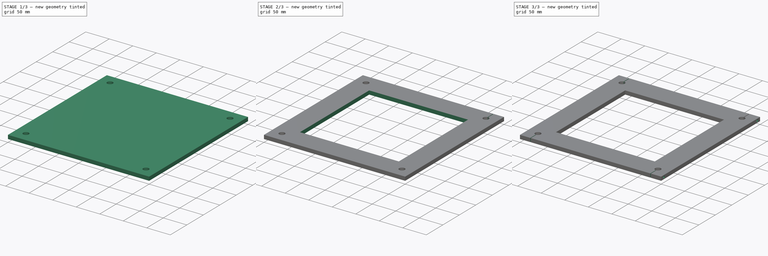
[diagram: build sequence overview — one tinted view per stage of 3, left to right]
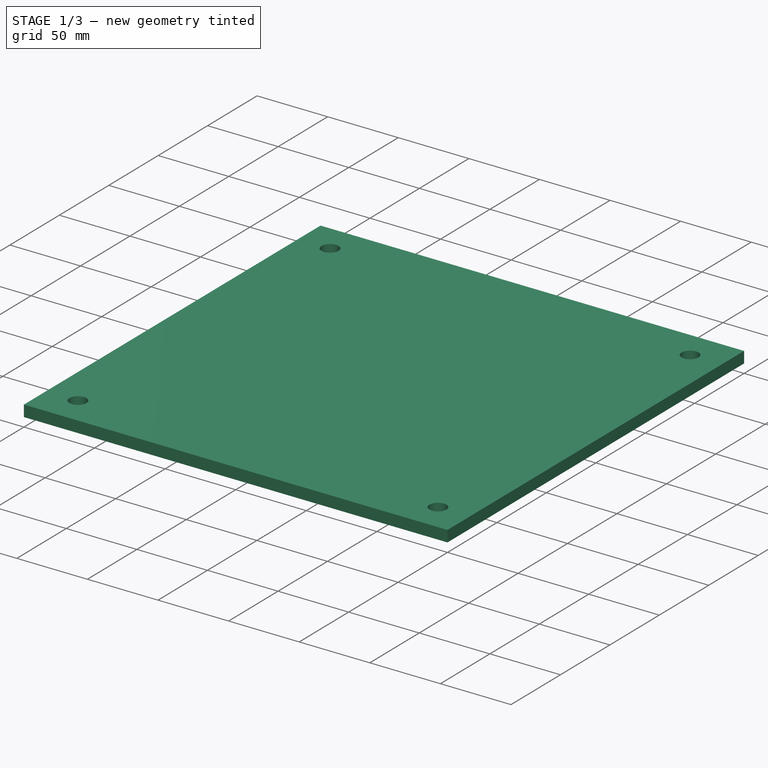
[diagram: stage 1 of 3 — iso view after this stage's code; geometry added in this stage tinted green]
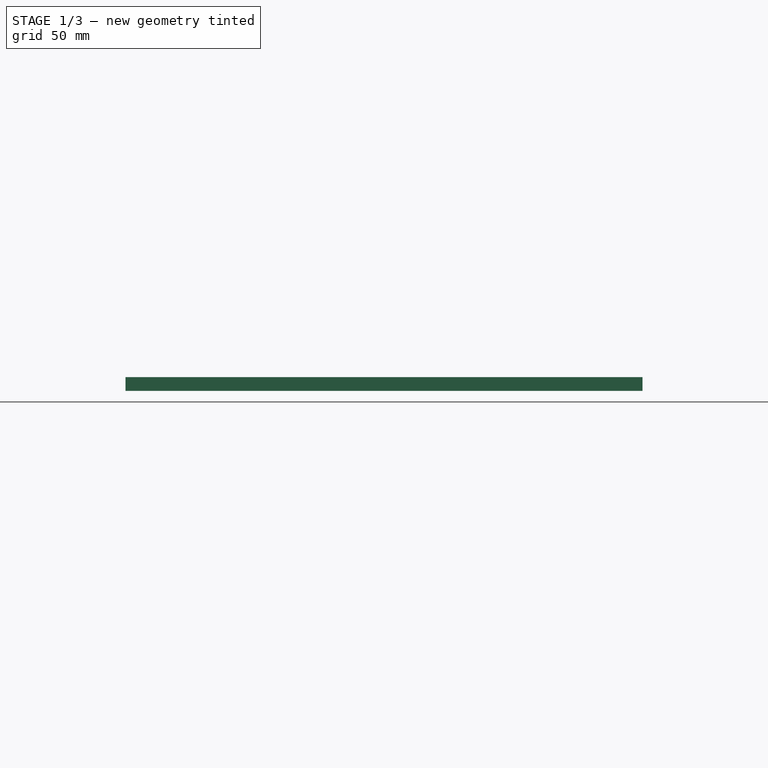
[diagram: stage 1 of 3 — front view after this stage's code; geometry added in this stage tinted green]
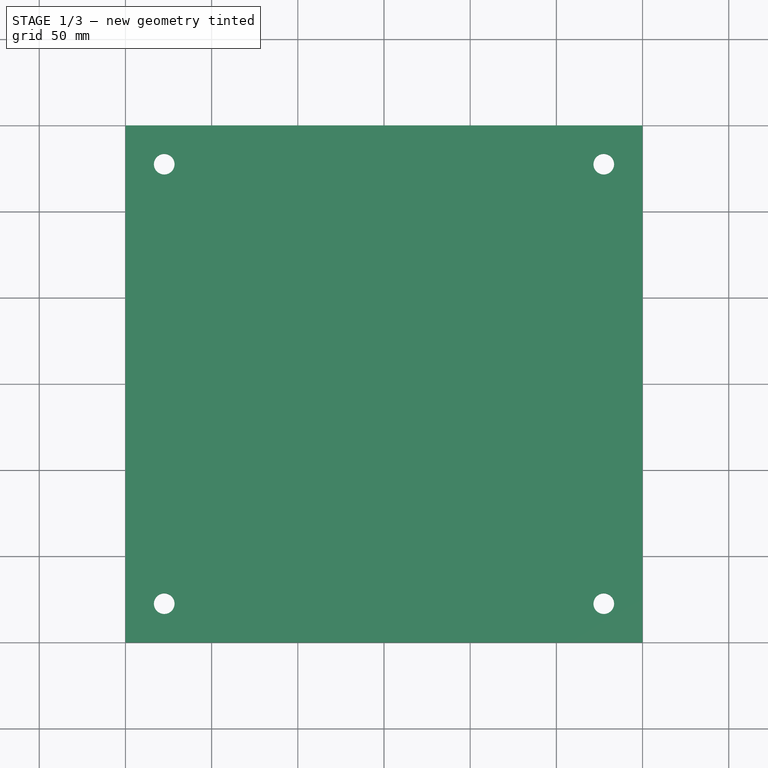
[diagram: stage 1 of 3 — top view after this stage's code; geometry added in this stage tinted green]
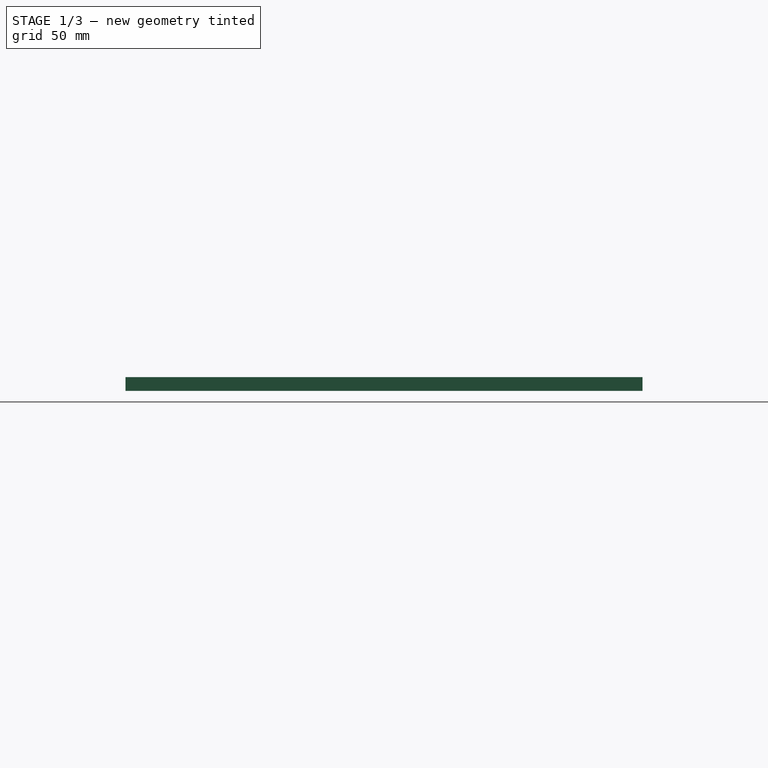
[diagram: stage 1 of 3 — right view after this stage's code; geometry added in this stage tinted green]
FCSTD DOCUMENT  (FreeCAD 0.15R4671 (Git))
Label: plateBottom
License: All rights reserved
LicenseURL: http://en.wikipedia.org/wiki/All_rights_reserved
objects: Sketcher::SketchObject×5, PartDesign::Mirrored×5, PartDesign::Pocket×4, PartDesign::MultiTransform×3, PartDesign::Pad×1
note: 23 computed .brp shape members not serialized (recipe doc carries the construction recipe); baked Part::Feature solids carry a one-line shape summary decoded from their .brp

FEATURE [Sketcher::SketchObject] Sketch
  sketch-geometry (6):
    g0: LineSegment StartX=-150 StartY=-150 StartZ=0 EndX=150 EndY=-150 EndZ=0
    g1: LineSegment StartX=150 StartY=-150 StartZ=0 EndX=150 EndY=150 EndZ=0
    g2: LineSegment StartX=150 StartY=150 StartZ=0 EndX=-150 EndY=150 EndZ=0
    g3: LineSegment StartX=-150 StartY=150 StartZ=0 EndX=-150 EndY=-150 EndZ=0
    g4: LineSegment [constr] StartX=-150 StartY=150 StartZ=0 EndX=150 EndY=-150 EndZ=0
    g5: LineSegment [constr] StartX=-150 StartY=-150 StartZ=0 EndX=150 EndY=150 EndZ=0
  constraints (16):
    c: Coincident(g0,g1)
    c: Coincident(g1,g2)
    c: Coincident(g2,g3)
    c: Coincident(g3,g0)
    c: Horizontal(g0)
    c: Horizontal(g2)
    c: Vertical(g1)
    c: Vertical(g3)
    c: DistanceX(g2) = -300
    c: Coincident(g4,g2)
    c: Coincident(g4,g0)
    c: PointOnObject(g-1,g4)
    c: Coincident(g5,g0)
    c: Coincident(g5,g1)
    c: PointOnObject(g-1,g5)
    c: Equal(g1,g2)
FEATURE [PartDesign::Pad] Pad
  Length = 8
  Length2 = 100
  Sketch = -> Sketch
  Type = 0
FEATURE [Sketcher::SketchObject] Sketch001
  Placement = pos=(0,0,8) rot=(0,0,1;0rad)
  Support = -> Pad [Face6]
  sketch-geometry (1):
    g0: Circle CenterX=127.5 CenterY=127.5 CenterZ=0 NormalX=0 NormalY=0 NormalZ=1 Radius=6
  constraints (3):
    c: Radius(g0) = 6
    c: DistanceX(g0) = 127.5
    c: DistanceY(g0) = 127.5
FEATURE [PartDesign::Pocket] Pocket
  Length = 5
  Sketch = -> Sketch001
  Type = 1
FEATURE [PartDesign::Mirrored] Mirrored
  MirrorPlane = -> Sketch001 [V_Axis]
FEATURE [PartDesign::Mirrored] Mirrored001
  MirrorPlane = -> Sketch001 [H_Axis]
FEATURE [PartDesign::MultiTransform] MultiTransform
  Originals = -> [Pocket]
  Transformations = -> [Mirrored,Mirrored001]
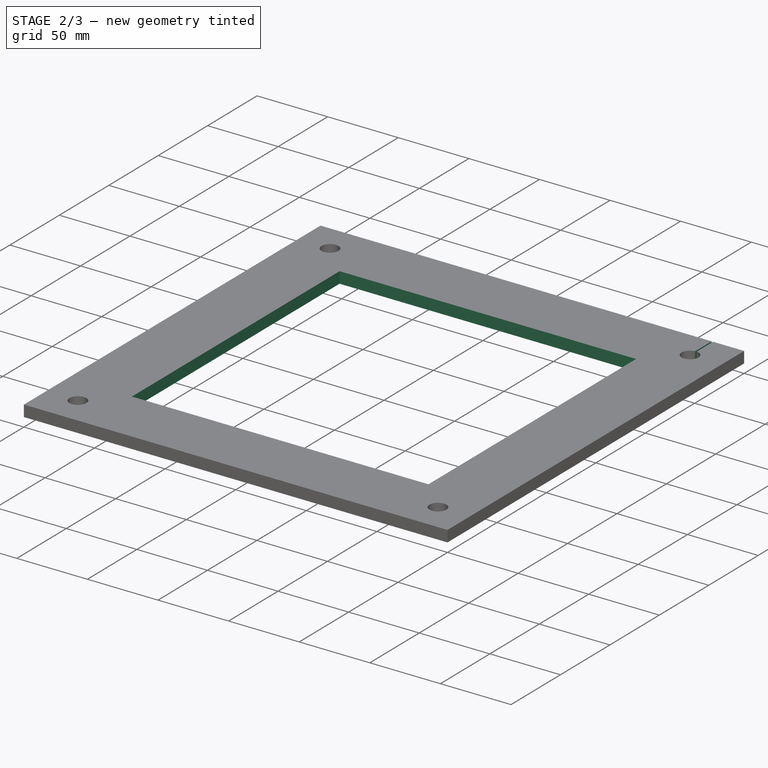
[diagram: stage 2 of 3 — iso view after this stage's code; geometry added in this stage tinted green]
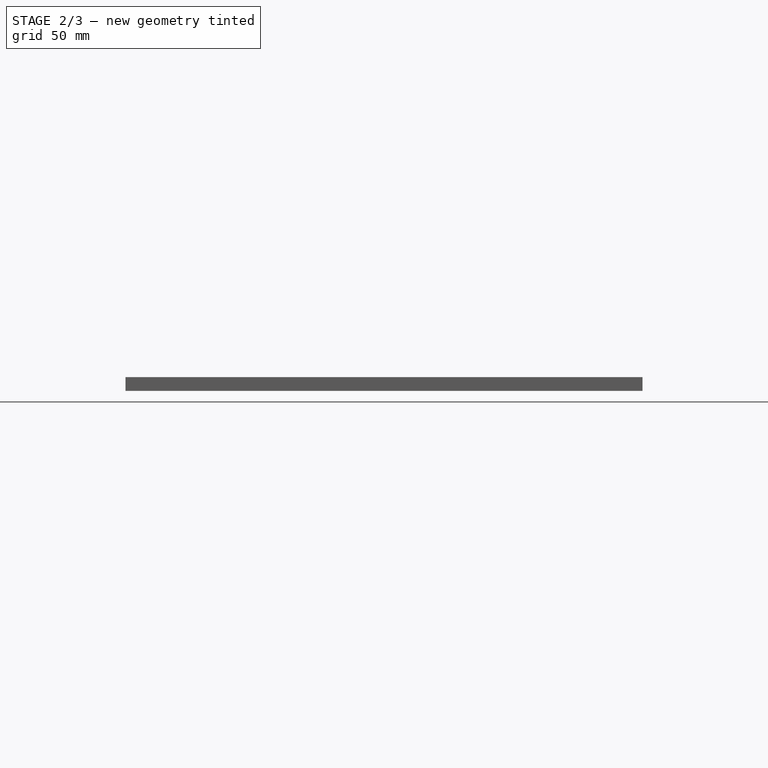
[diagram: stage 2 of 3 — front view after this stage's code; geometry added in this stage tinted green]
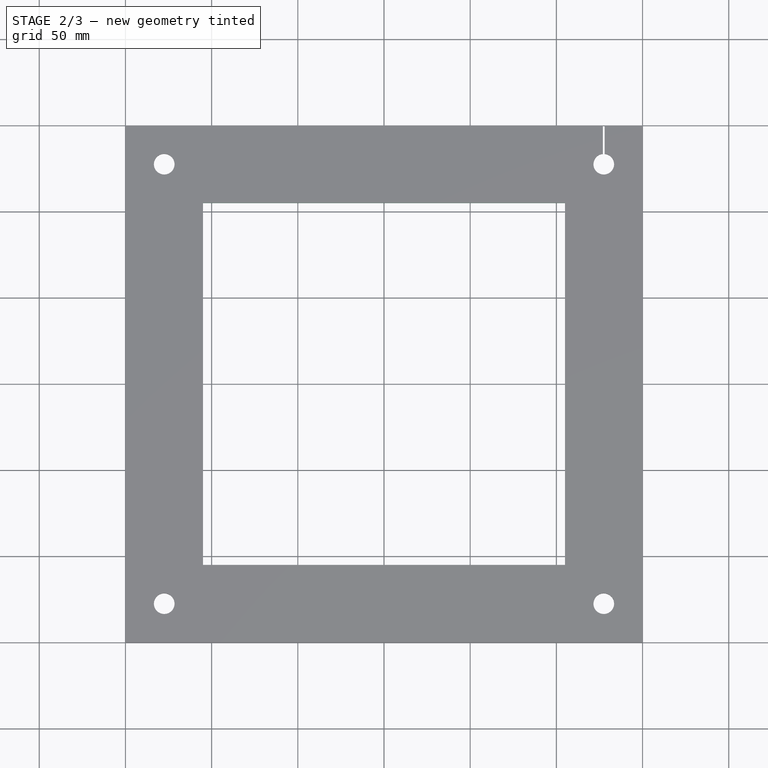
[diagram: stage 2 of 3 — top view after this stage's code; geometry added in this stage tinted green]
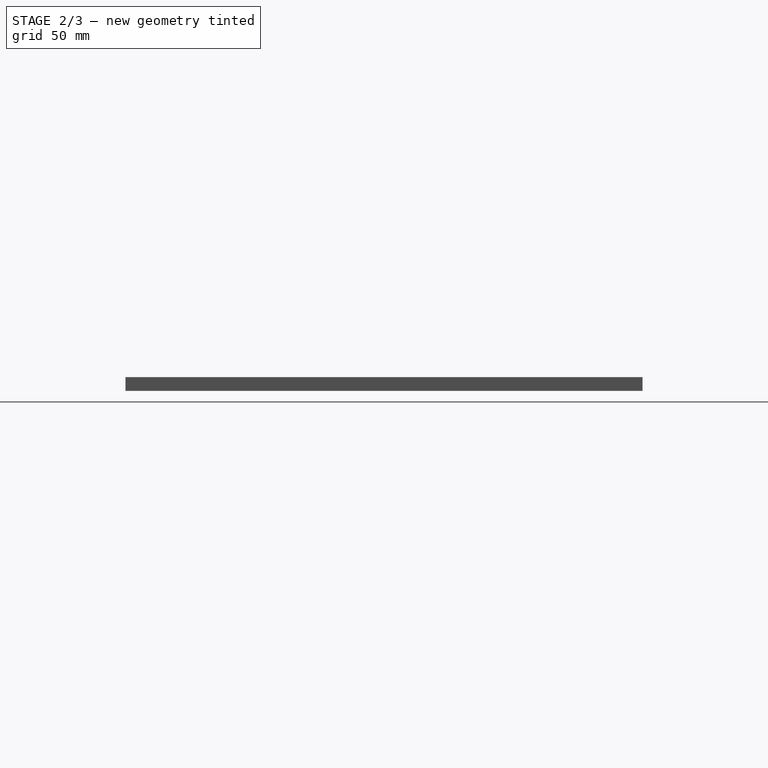
[diagram: stage 2 of 3 — right view after this stage's code; geometry added in this stage tinted green]
FEATURE [Sketcher::SketchObject] Sketch002
  Placement = pos=(0,0,8) rot=(0,0,1;0rad)
  Support = -> MultiTransform [Face5]
  sketch-geometry (6):
    g0: LineSegment StartX=-105 StartY=-105 StartZ=0 EndX=105 EndY=-105 EndZ=0
    g1: LineSegment StartX=105 StartY=-105 StartZ=0 EndX=105 EndY=105 EndZ=0
    g2: LineSegment StartX=105 StartY=105 StartZ=0 EndX=-105 EndY=105 EndZ=0
    g3: LineSegment StartX=-105 StartY=105 StartZ=0 EndX=-105 EndY=-105 EndZ=0
    g4: LineSegment [constr] StartX=-105 StartY=105 StartZ=0 EndX=105 EndY=-105 EndZ=0
    g5: LineSegment [constr] StartX=105 StartY=105 StartZ=0 EndX=-105 EndY=-105 EndZ=0
  constraints (16):
    c: Coincident(g0,g1)
    c: Coincident(g1,g2)
    c: Coincident(g2,g3)
    c: Coincident(g3,g0)
    c: Horizontal(g0)
    c: Horizontal(g2)
    c: Vertical(g1)
    c: Vertical(g3)
    c: Coincident(g4,g2)
    c: Coincident(g4,g0)
    c: Coincident(g5,g1)
    c: Coincident(g5,g0)
    c: PointOnObject(g-1,g4)
    c: PointOnObject(g-1,g5)
    c: Equal(g2,g1)
    c: DistanceX(g2) = -210
FEATURE [PartDesign::Pocket] Pocket001
  Length = 5
  Sketch = -> Sketch002
  Type = 1
FEATURE [Sketcher::SketchObject] Sketch003
  ExternalGeometry = -> [Pocket001]
  Placement = pos=(0,0,8) rot=(0,0,1;0rad)
  Support = -> Pocket001 [Face5]
  sketch-geometry (7):
    g0: LineSegment StartX=127 StartY=127.5 StartZ=0 EndX=128 EndY=127.5 EndZ=0
    g1: LineSegment StartX=128 StartY=127.5 StartZ=0 EndX=128 EndY=150 EndZ=0
    g2: LineSegment StartX=128 StartY=150 StartZ=0 EndX=127 EndY=150 EndZ=0
    g3: LineSegment StartX=127 StartY=150 StartZ=0 EndX=127 EndY=127.5 EndZ=0
    g4: LineSegment [constr] StartX=127 StartY=150 StartZ=0 EndX=128 EndY=127.5 EndZ=0
    g5: LineSegment [constr] StartX=127 StartY=127.5 StartZ=0 EndX=128 EndY=150 EndZ=0
    g6: GeomPoint [constr] X=127.5 Y=138.75 Z=0
  constraints (18):
    c: Coincident(g0,g1)
    c: Coincident(g1,g2)
    c: Coincident(g2,g3)
    c: Coincident(g3,g0)
    c: Horizontal(g0)
    c: Horizontal(g2)
    c: Vertical(g1)
    c: Vertical(g3)
    c: Coincident(g4,g2)
    c: Coincident(g4,g0)
    c: Coincident(g5,g0)
    c: Coincident(g5,g1)
    c: DistanceX(g2) = -1
    c: PointOnObject(g-4,g0)
    c: PointOnObject(g1,g-3)
    c: PointOnObject(g6,g4)
    c: PointOnObject(g6,g5)
    c: DistanceX(g6) = 127.5
FEATURE [PartDesign::Pocket] Pocket002
  Length = 5
  Sketch = -> Sketch003
  Type = 1
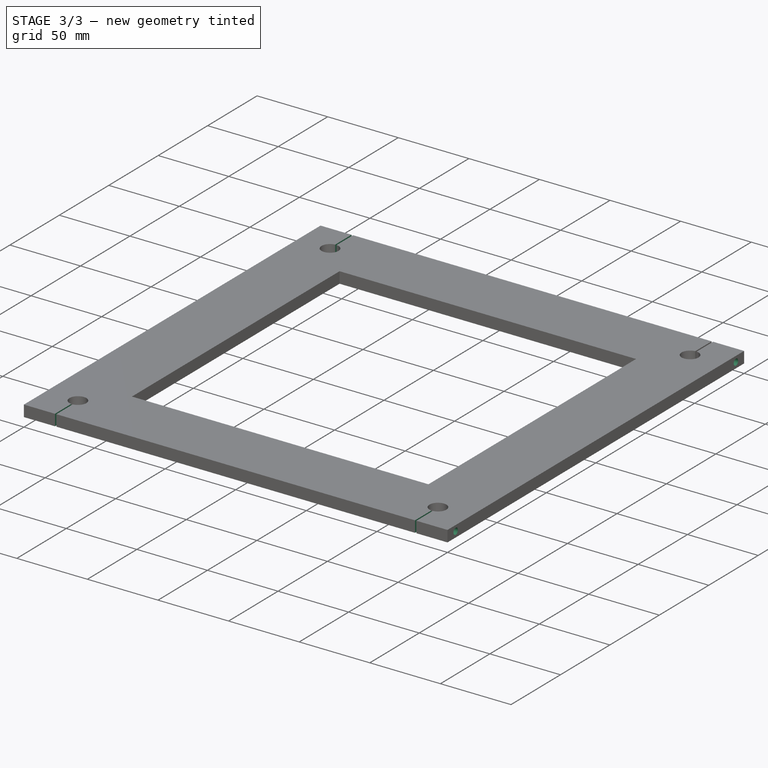
[diagram: stage 3 of 3 — iso view after this stage's code; geometry added in this stage tinted green]
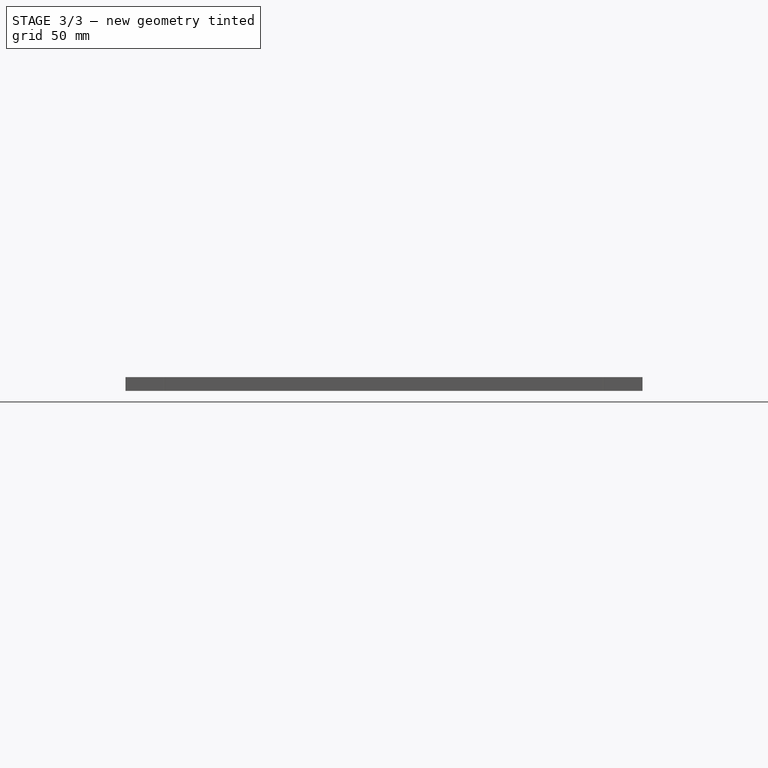
[diagram: stage 3 of 3 — front view after this stage's code; geometry added in this stage tinted green]
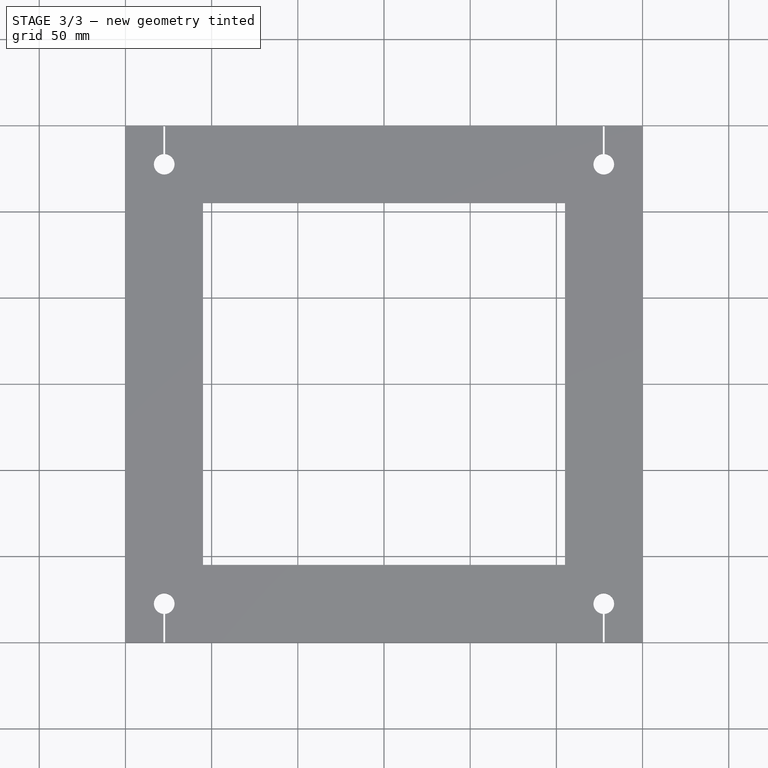
[diagram: stage 3 of 3 — top view after this stage's code; geometry added in this stage tinted green]
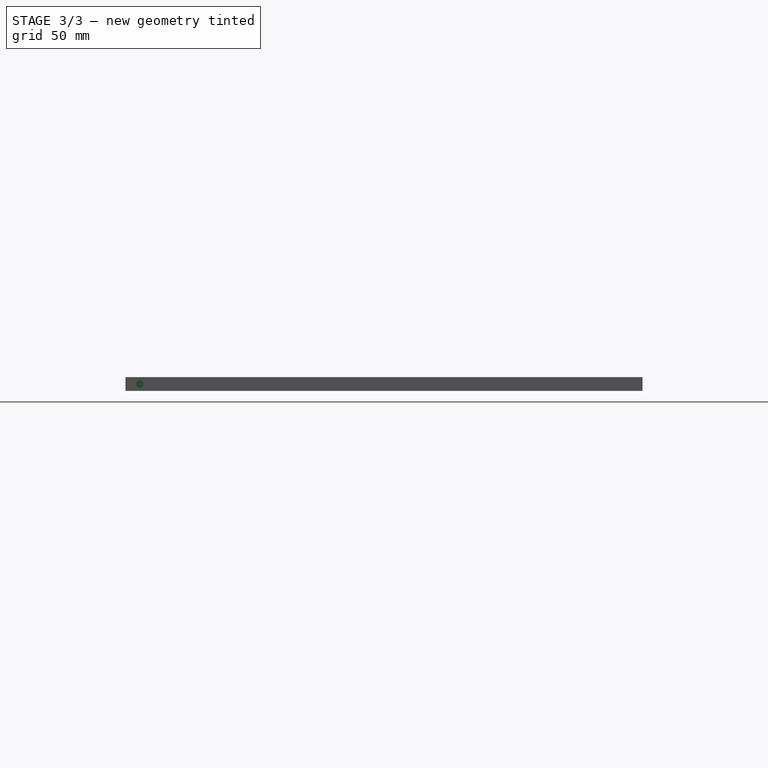
[diagram: stage 3 of 3 — right view after this stage's code; geometry added in this stage tinted green]
FEATURE [PartDesign::Mirrored] Mirrored002
  MirrorPlane = -> Sketch003 [V_Axis]
FEATURE [PartDesign::Mirrored] Mirrored003
  MirrorPlane = -> Sketch003 [H_Axis]
FEATURE [PartDesign::MultiTransform] MultiTransform001
  Originals = -> [Pocket002]
  Transformations = -> [Mirrored002,Mirrored003]
FEATURE [Sketcher::SketchObject] Sketch004
  ExternalGeometry = -> [MultiTransform001]
  Placement = pos=(127,0,0) rot=(0.57735,0.57735,0.57735;2.0944rad)
  Support = -> MultiTransform001 [Face12]
  sketch-geometry (3):
    g0: LineSegment [constr] StartX=133.479 StartY=8 StartZ=0 EndX=150 EndY=0 EndZ=0
    g1: LineSegment [constr] StartX=133.479 StartY=0 StartZ=0 EndX=150 EndY=8 EndZ=0
    g2: Circle CenterX=141.74 CenterY=4 CenterZ=0 NormalX=0 NormalY=0 NormalZ=1 Radius=2.25
  constraints (7):
    c: Coincident(g0,g-6)
    c: Coincident(g0,g-5)
    c: Coincident(g1,g-6)
    c: PointOnObject(g2,g0)
    c: Radius(g2) = 2.25
    c: PointOnObject(g2,g1)
    c: Coincident(g1,g-4)
FEATURE [PartDesign::Pocket] Pocket003
  Length = 0
  Sketch = -> Sketch004
  Type = 3
  UpToFace = -> MultiTransform001 [Face17]
FEATURE [PartDesign::Mirrored] Mirrored004
  MirrorPlane = -> Sketch004 [V_Axis]
FEATURE [PartDesign::MultiTransform] MultiTransform002
  Originals = -> [Pocket003]
  Transformations = -> [Mirrored004]
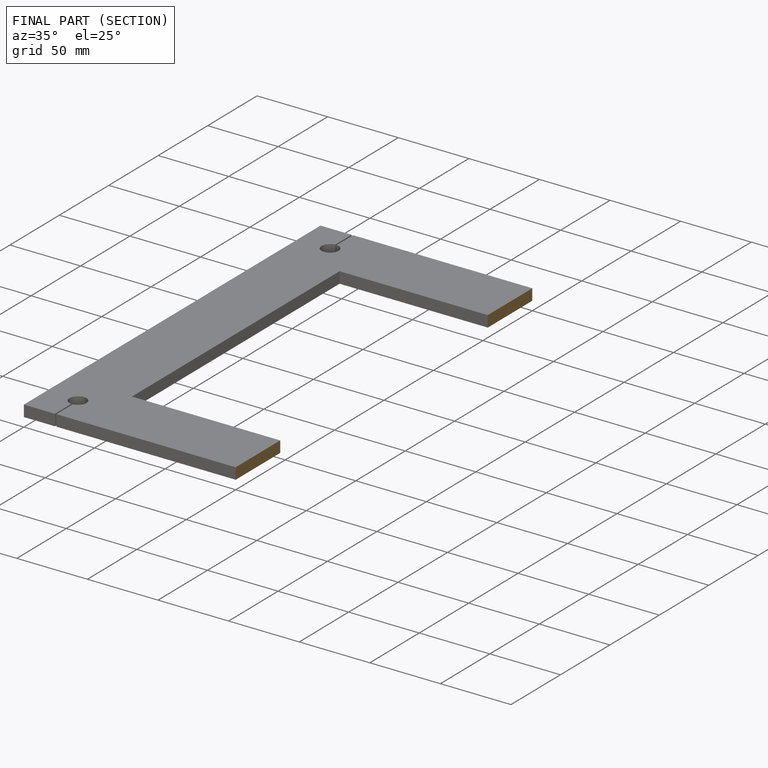
[diagram: finished part — half-section view (interior)]
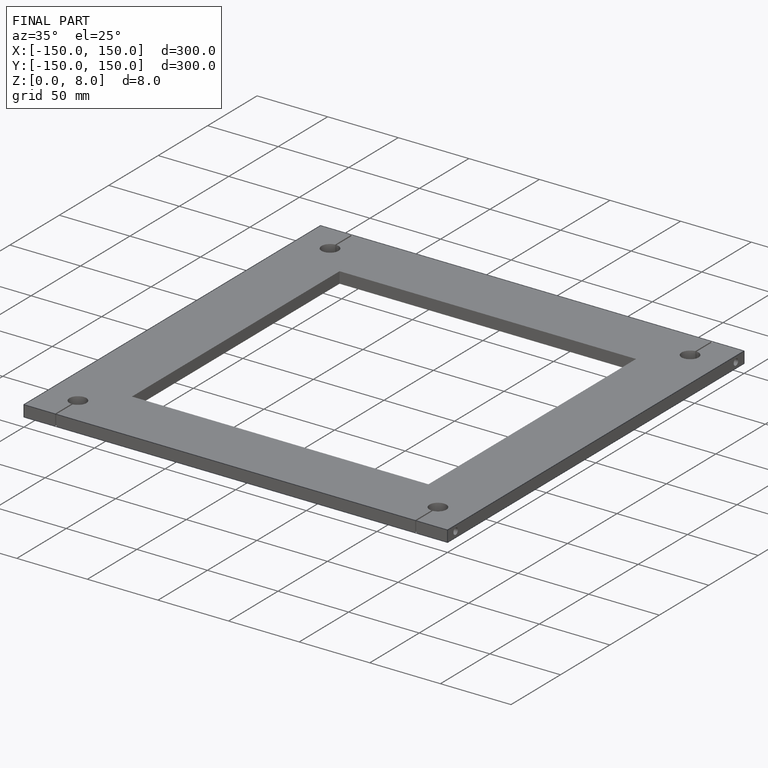
[diagram: finished part — iso view with bounding-box wireframe]
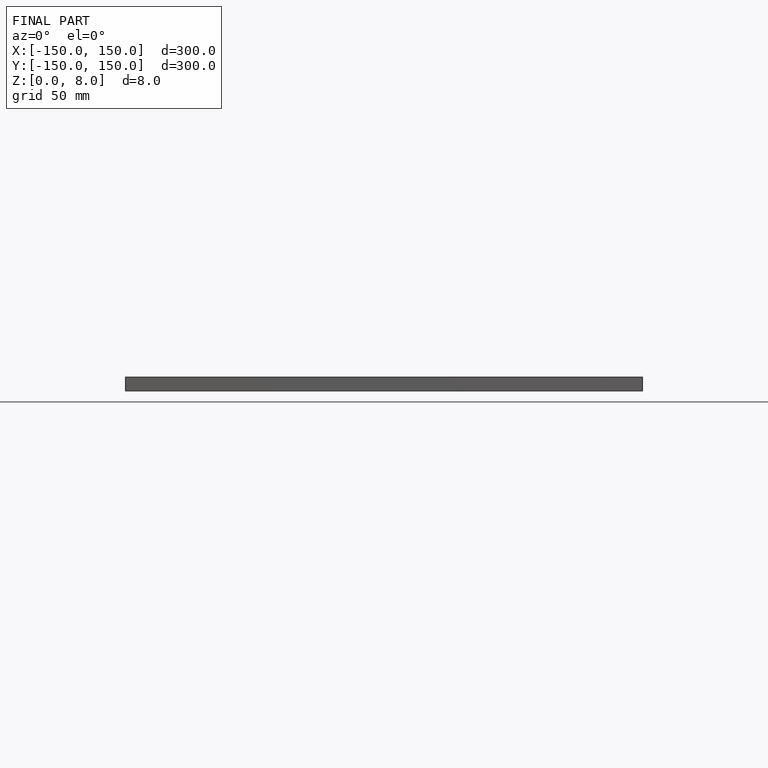
[diagram: finished part — front view with bounding-box wireframe]
